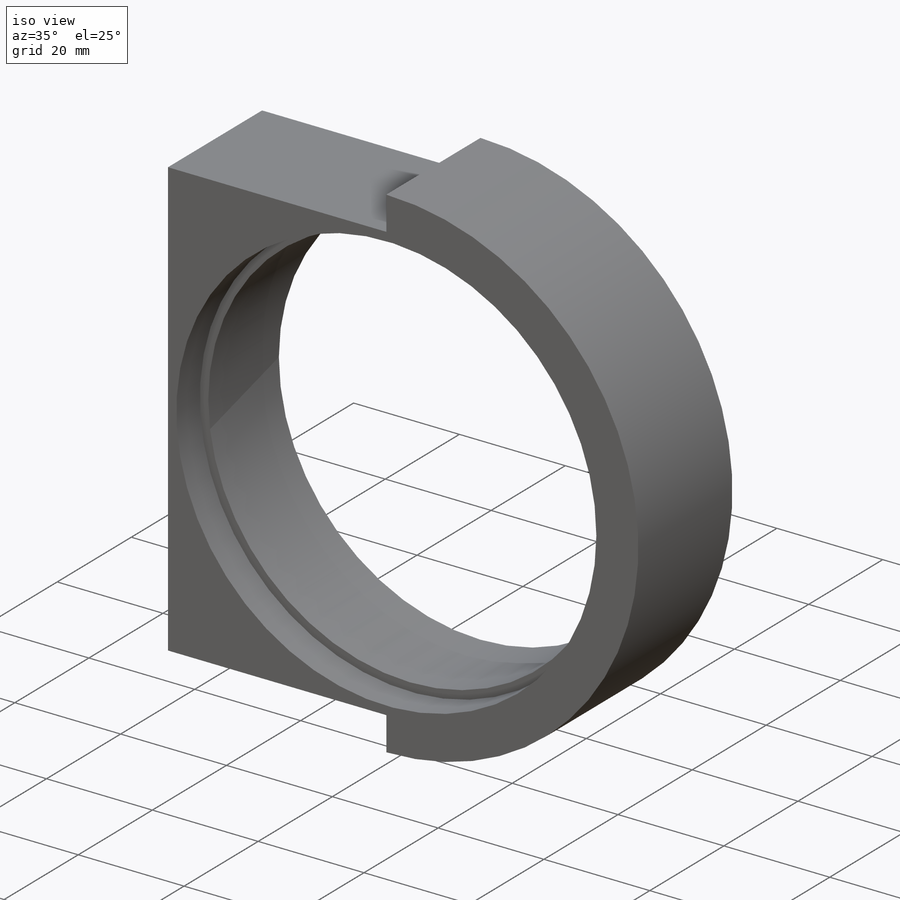
[diagram: iso view]
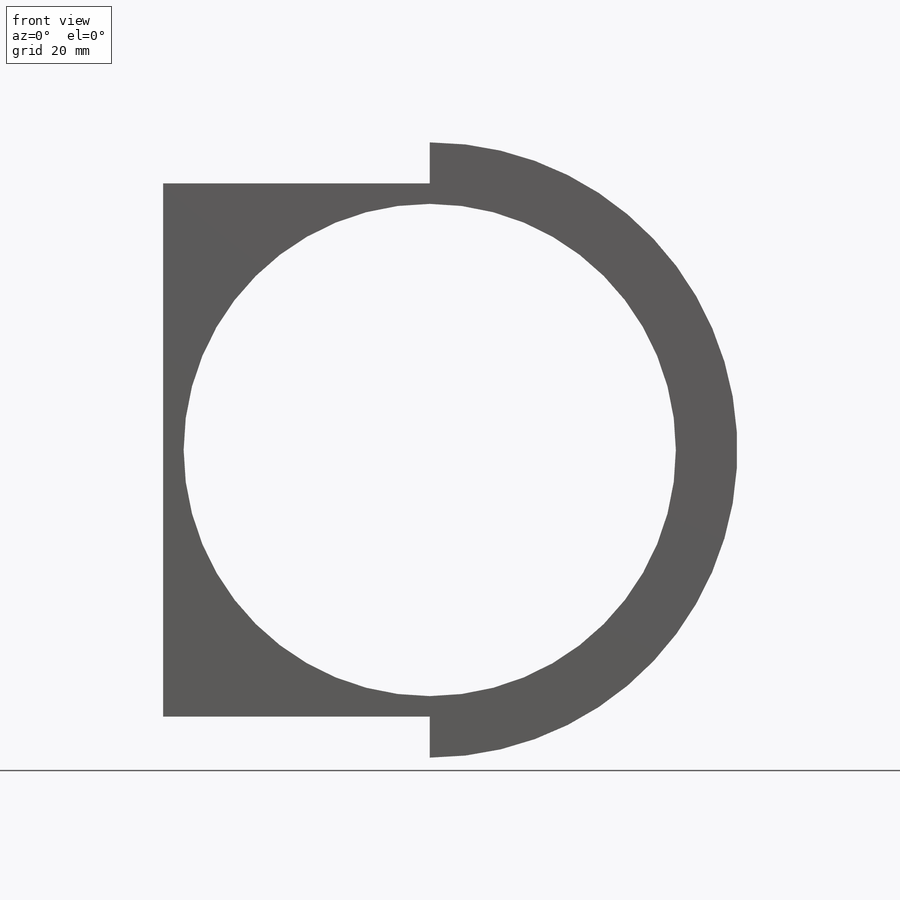
[diagram: front view]
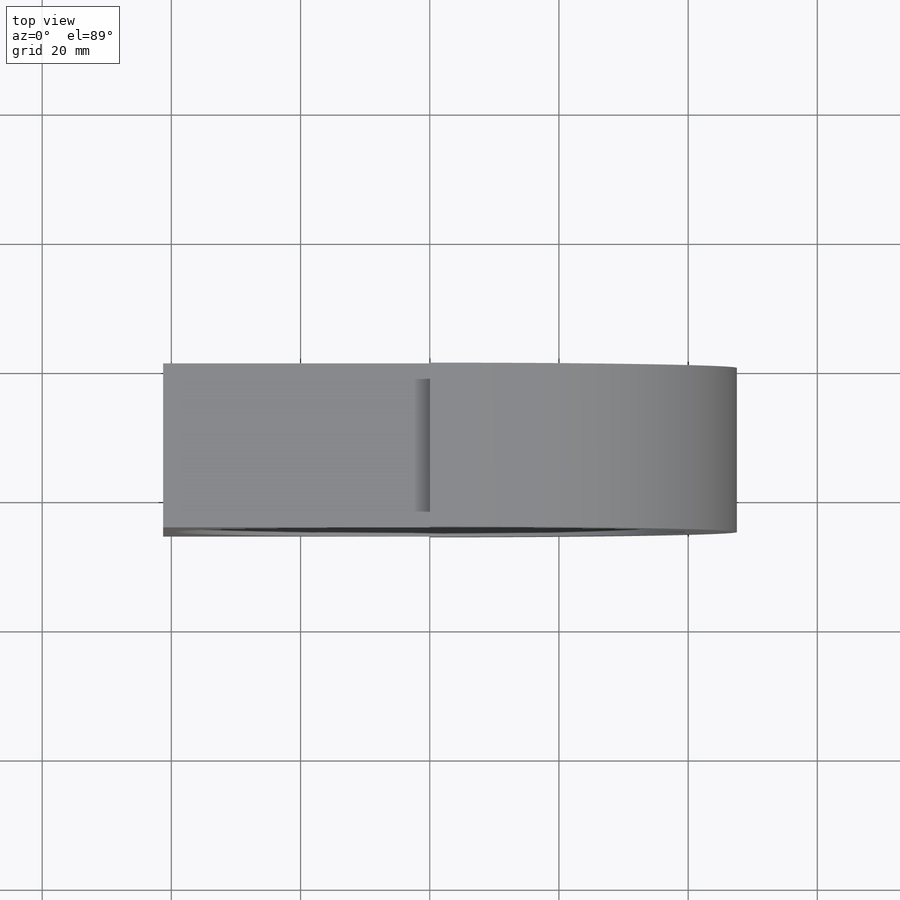
[diagram: top view]
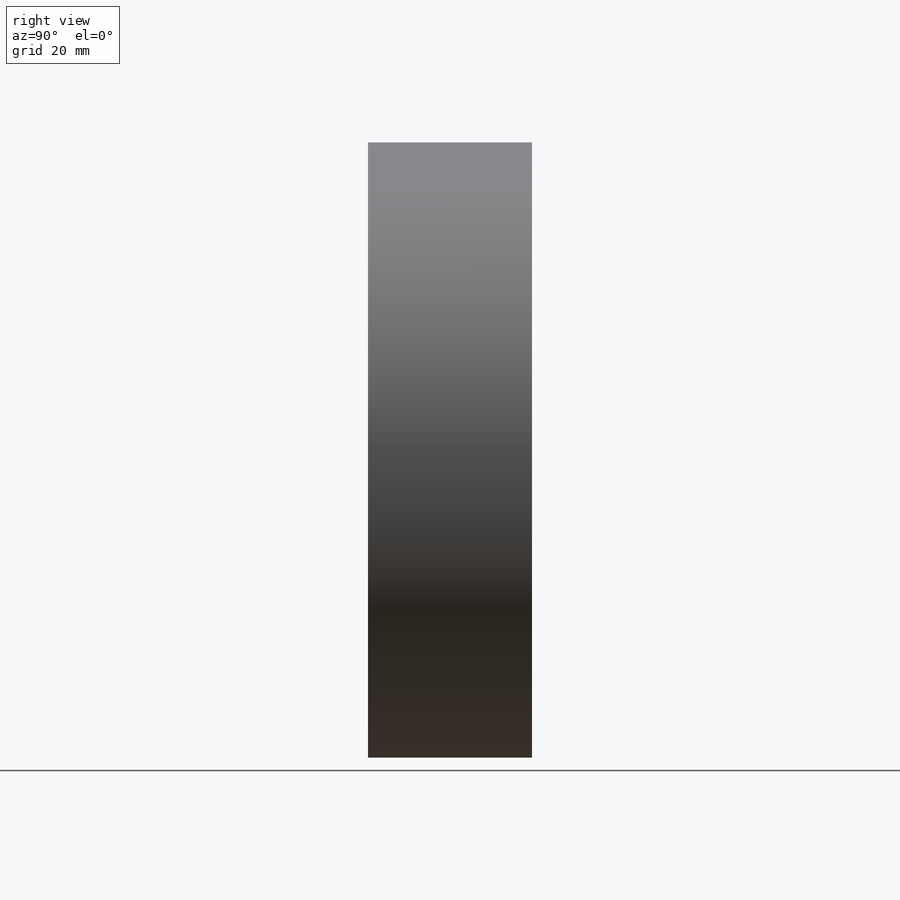
[diagram: right view]
SOLIDWORKS PART (.sldprt)
format: sldprt  version: not decoded by parser v0  size: 202,240 bytes
history: native  units: mm
features: sketch x4, cut_extrude x2, material x1, extrude x1, plane x1, cut_revolve x1 (+13 scaffold rows collapsed)
feature tree (23):
  scaffold x13  (default folders/planes/origin — collapsed)
  material  "Material <not specified>"
  sketch  "Sketch1"  dims[D1=76.2mm D2=95.25mm D3=6.35mm D4=6.35mm]
  extrude  "Boss-Extrude1"  Depth=25.4mm
  plane  "Plane1"  Offset=12.7mm
  sketch  "Sketch5"  dims[D1=43.18mm D2=20.32mm D3=~35.924665mm]
  cut_revolve  "Cut-Revolve3"  Angle=360deg
  sketch  "Sketch2"  dims[D1=79.375mm]
  cut_extrude  "Cut-Extrude1"  Depth=6.35mm
  sketch  "Sketch4"
  cut_extrude  "Cut-Extrude2"  [1 undecoded]
decode coverage: 6 of 8 modeling features carry decoded parameters
note: ~ marks probable driven/reference dimensions
note: 1 parameter value undecoded
note: suppression state not decoded; provenance and decode notes live in map.json
